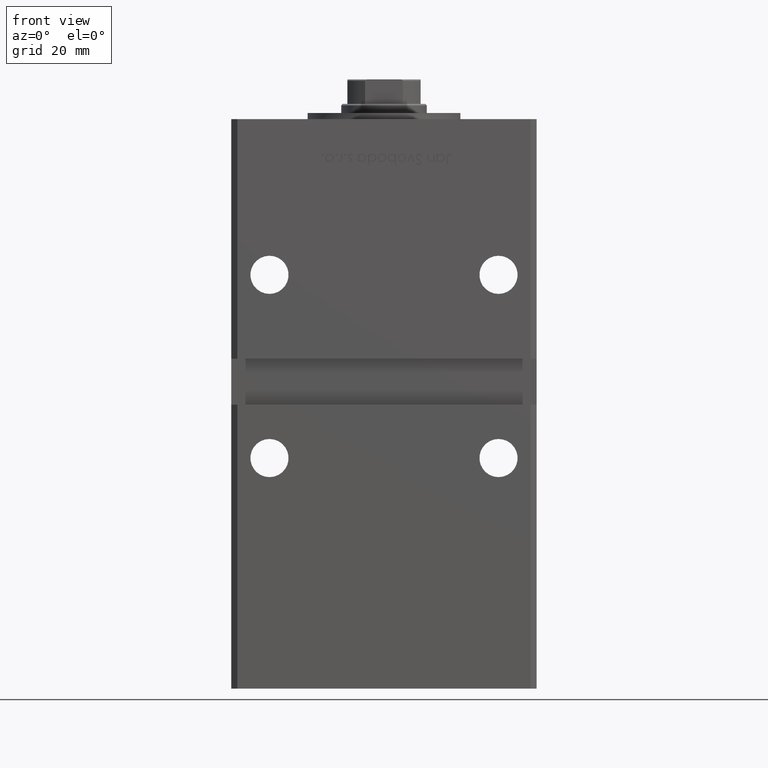
[diagram: clean part render]
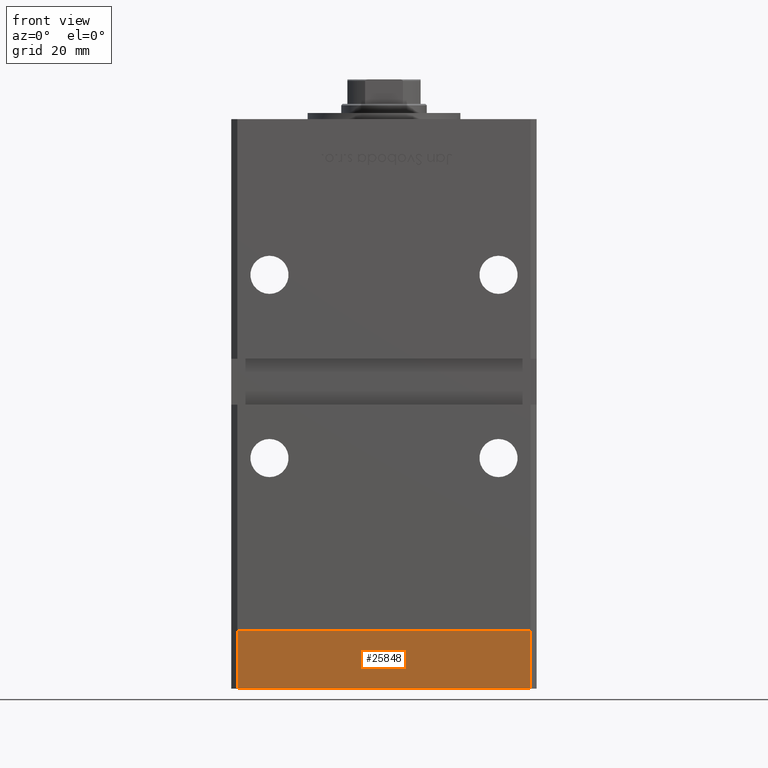
[diagram: same view with one face highlighted and labeled with its STEP entity id]
A machine part, front view. The second image highlights one B-rep face of the part: STEP entity #25848.
In plain terms, the highlighted planar face has unit normal (0, -1, -0).
Its self-contained STEP definition (entity closure, byte-faithful):
#5270 = EDGE_CURVE ( 'NONE', #50047, #20098, #20709, .T. ) ;
#5532 = PLANE ( 'NONE',  #46340 ) ;
#9568 = CARTESIAN_POINT ( 'NONE',  ( -47.99999999999999289, -43.50000000000001421, -19.00000000000000000 ) ) ;
#10089 = EDGE_CURVE ( 'NONE', #50047, #14884, #32074, .T. ) ;
#10386 = ORIENTED_EDGE ( 'NONE', *, *, #10089, .T. ) ;
#11268 = EDGE_LOOP ( 'NONE', ( #50038, #14381, #10386, #51784 ) ) ;
#14381 = ORIENTED_EDGE ( 'NONE', *, *, #5270, .F. ) ;
#14884 = VERTEX_POINT ( 'NONE', #47209 ) ;
#15633 = VERTEX_POINT ( 'NONE', #17349 ) ;
#16197 = DIRECTION ( 'NONE',  ( 1.000000000000000000, 0.000000000000000000, 0.000000000000000000 ) ) ;
#16324 = EDGE_CURVE ( 'NONE', #20098, #15633, #17119, .T. ) ;
#17015 = CARTESIAN_POINT ( 'NONE',  ( -47.99999999999999289, -43.50000000000001421, -19.00000000000000000 ) ) ;
#17119 = LINE ( 'NONE', #33545, #30673 ) ;
#17349 = CARTESIAN_POINT ( 'NONE',  ( 47.99999999999999289, -43.50000000000001421, 0.000000000000000000 ) ) ;
#20098 = VERTEX_POINT ( 'NONE', #48675 ) ;
#20709 = LINE ( 'NONE', #37148, #26905 ) ;
#21064 = EDGE_CURVE ( 'NONE', #14884, #15633, #26535, .T. ) ;
#21430 = DIRECTION ( 'NONE',  ( 0.000000000000000000, -0.000000000000000000, -1.000000000000000000 ) ) ;
#22206 = FACE_OUTER_BOUND ( 'NONE', #11268, .T. ) ;
#25848 = ADVANCED_FACE ( 'NONE', ( #22206 ), #5532, .T. ) ;
#26356 = VECTOR ( 'NONE', #38927, 1000.000000000000000 ) ;
#26535 = LINE ( 'NONE', #42977, #26356 ) ;
#26905 = VECTOR ( 'NONE', #45497, 1000.000000000000000 ) ;
#27069 = VECTOR ( 'NONE', #16197, 1000.000000000000000 ) ;
#30673 = VECTOR ( 'NONE', #34073, 1000.000000000000000 ) ;
#32074 = LINE ( 'NONE', #35861, #27069 ) ;
#33545 = CARTESIAN_POINT ( 'NONE',  ( -47.99999999999999289, -43.50000000000001421, 0.000000000000000000 ) ) ;
#34073 = DIRECTION ( 'NONE',  ( 1.000000000000000000, 0.000000000000000000, 0.000000000000000000 ) ) ;
#35861 = CARTESIAN_POINT ( 'NONE',  ( -47.99999999999999289, -43.50000000000001421, -19.00000000000000000 ) ) ;
#37148 = CARTESIAN_POINT ( 'NONE',  ( -47.99999999999999289, -43.50000000000001421, -19.00000000000000000 ) ) ;
#38640 = DIRECTION ( 'NONE',  ( 0.000000000000000000, -1.000000000000000000, 0.000000000000000000 ) ) ;
#38927 = DIRECTION ( 'NONE',  ( 0.000000000000000000, 0.000000000000000000, 1.000000000000000000 ) ) ;
#42977 = CARTESIAN_POINT ( 'NONE',  ( 47.99999999999999289, -43.50000000000001421, -19.00000000000000000 ) ) ;
#45497 = DIRECTION ( 'NONE',  ( 0.000000000000000000, 0.000000000000000000, 1.000000000000000000 ) ) ;
#46340 = AXIS2_PLACEMENT_3D ( 'NONE', #9568, #38640, #21430 ) ;
#47209 = CARTESIAN_POINT ( 'NONE',  ( 47.99999999999999289, -43.50000000000001421, -19.00000000000000000 ) ) ;
#48675 = CARTESIAN_POINT ( 'NONE',  ( -47.99999999999999289, -43.50000000000001421, 0.000000000000000000 ) ) ;
#50038 = ORIENTED_EDGE ( 'NONE', *, *, #16324, .F. ) ;
#50047 = VERTEX_POINT ( 'NONE', #17015 ) ;
#51784 = ORIENTED_EDGE ( 'NONE', *, *, #21064, .T. ) ;